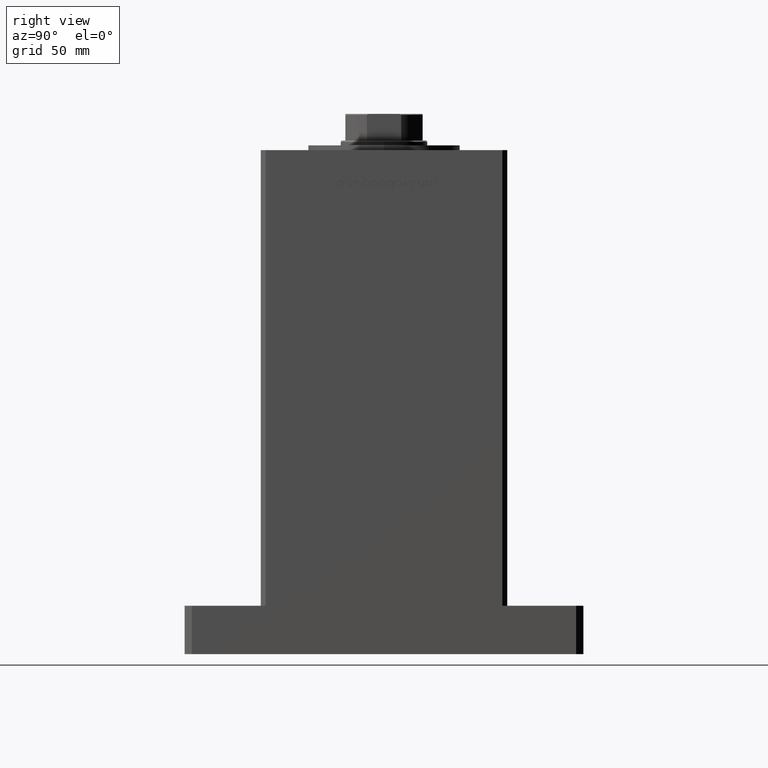
[diagram: clean part render]
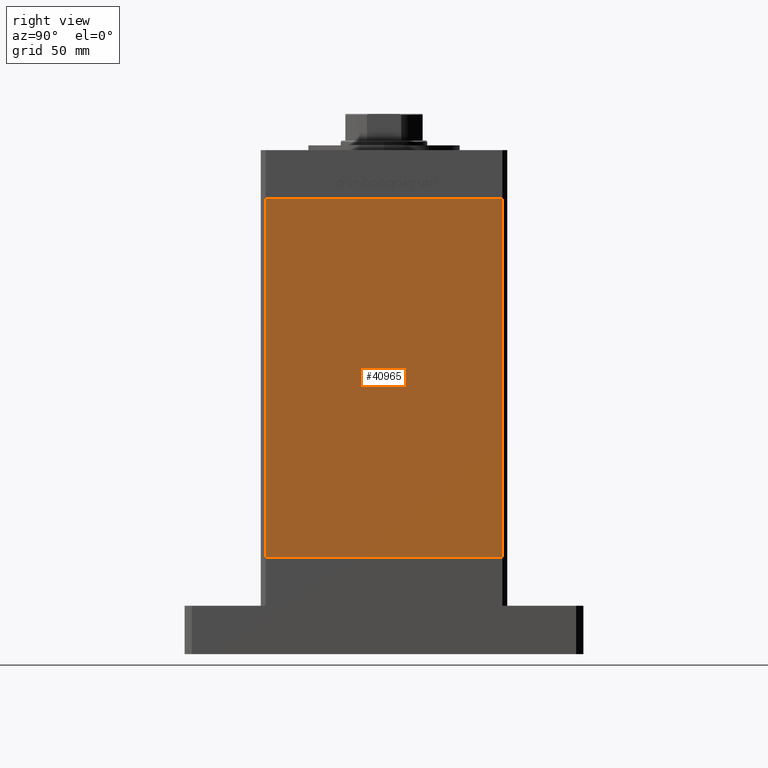
[diagram: same view with one face highlighted and labeled with its STEP entity id]
A machine part, right view. The second image highlights one B-rep face of the part: STEP entity #40965.
In plain terms, the highlighted planar face has unit normal (1, -0, 0).
Its self-contained STEP definition (entity closure, byte-faithful):
#927 = DIRECTION ( 'NONE',  ( -2.832201593431521726E-16, -1.000000000000000000, 0.000000000000000000 ) ) ;
#3307 = AXIS2_PLACEMENT_3D ( 'NONE', #38375, #21288, #29181 ) ;
#6834 = ORIENTED_EDGE ( 'NONE', *, *, #18649, .F. ) ;
#6939 = VERTEX_POINT ( 'NONE', #25915 ) ;
#8551 = PLANE ( 'NONE',  #3307 ) ;
#9335 = ORIENTED_EDGE ( 'NONE', *, *, #10922, .T. ) ;
#9547 = EDGE_CURVE ( 'NONE', #27061, #45442, #25901, .T. ) ;
#10922 = EDGE_CURVE ( 'NONE', #6939, #45442, #12212, .T. ) ;
#12212 = LINE ( 'NONE', #45603, #38589 ) ;
#13815 = LINE ( 'NONE', #39051, #40508 ) ;
#15576 = ORIENTED_EDGE ( 'NONE', *, *, #9547, .F. ) ;
#17306 = VERTEX_POINT ( 'NONE', #32690 ) ;
#17468 = FACE_OUTER_BOUND ( 'NONE', #35445, .T. ) ;
#18649 = EDGE_CURVE ( 'NONE', #17306, #27061, #33700, .T. ) ;
#21288 = DIRECTION ( 'NONE',  ( 1.000000000000000000, -2.832201593431521726E-16, 0.000000000000000000 ) ) ;
#21808 = CARTESIAN_POINT ( 'NONE',  ( 60.00000000000001421, 49.00000000000000000, 0.000000000000000000 ) ) ;
#25442 = CARTESIAN_POINT ( 'NONE',  ( 59.99999999999998579, -49.00000000000000000, 0.000000000000000000 ) ) ;
#25901 = LINE ( 'NONE', #21808, #45501 ) ;
#25915 = CARTESIAN_POINT ( 'NONE',  ( 59.99999999999998579, -49.00000000000000000, 148.5000000000000000 ) ) ;
#27061 = VERTEX_POINT ( 'NONE', #37559 ) ;
#29181 = DIRECTION ( 'NONE',  ( 2.832201593431521726E-16, 1.000000000000000000, 0.000000000000000000 ) ) ;
#30909 = DIRECTION ( 'NONE',  ( -2.832201593431521726E-16, -1.000000000000000000, 0.000000000000000000 ) ) ;
#32690 = CARTESIAN_POINT ( 'NONE',  ( 60.00000000000001421, 49.00000000000000000, 148.5000000000000000 ) ) ;
#33379 = DIRECTION ( 'NONE',  ( -0.000000000000000000, -0.000000000000000000, -1.000000000000000000 ) ) ;
#33700 = LINE ( 'NONE', #38303, #36082 ) ;
#34141 = EDGE_CURVE ( 'NONE', #17306, #6939, #13815, .T. ) ;
#35445 = EDGE_LOOP ( 'NONE', ( #15576, #6834, #43503, #9335 ) ) ;
#36082 = VECTOR ( 'NONE', #46445, 1000.000000000000000 ) ;
#37559 = CARTESIAN_POINT ( 'NONE',  ( 60.00000000000001421, 49.00000000000000000, 0.000000000000000000 ) ) ;
#38303 = CARTESIAN_POINT ( 'NONE',  ( 60.00000000000001421, 49.00000000000000000, 148.5000000000000000 ) ) ;
#38375 = CARTESIAN_POINT ( 'NONE',  ( 60.00000000000001421, 49.00000000000000000, 148.5000000000000000 ) ) ;
#38589 = VECTOR ( 'NONE', #33379, 1000.000000000000000 ) ;
#39051 = CARTESIAN_POINT ( 'NONE',  ( 60.00000000000001421, 49.00000000000000000, 148.5000000000000000 ) ) ;
#40508 = VECTOR ( 'NONE', #30909, 1000.000000000000000 ) ;
#40965 = ADVANCED_FACE ( 'NONE', ( #17468 ), #8551, .T. ) ;
#43503 = ORIENTED_EDGE ( 'NONE', *, *, #34141, .T. ) ;
#45442 = VERTEX_POINT ( 'NONE', #25442 ) ;
#45501 = VECTOR ( 'NONE', #927, 1000.000000000000000 ) ;
#45603 = CARTESIAN_POINT ( 'NONE',  ( 59.99999999999998579, -49.00000000000000000, 148.5000000000000000 ) ) ;
#46445 = DIRECTION ( 'NONE',  ( -0.000000000000000000, -0.000000000000000000, -1.000000000000000000 ) ) ;